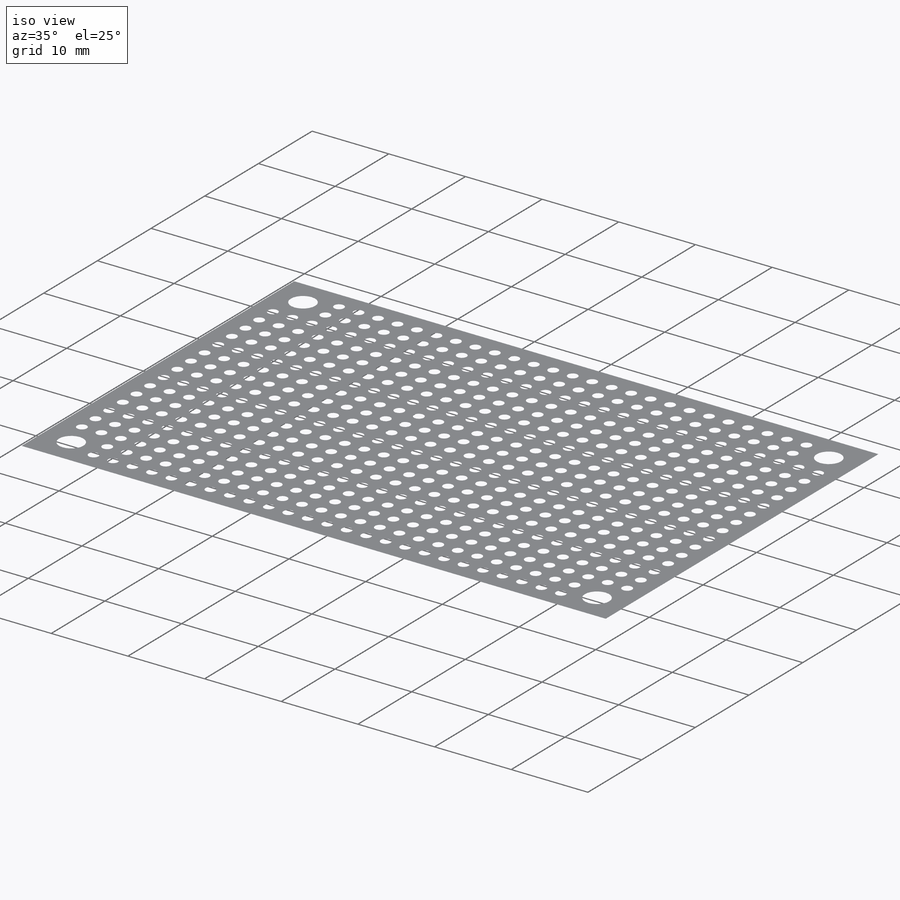
[diagram: iso view]
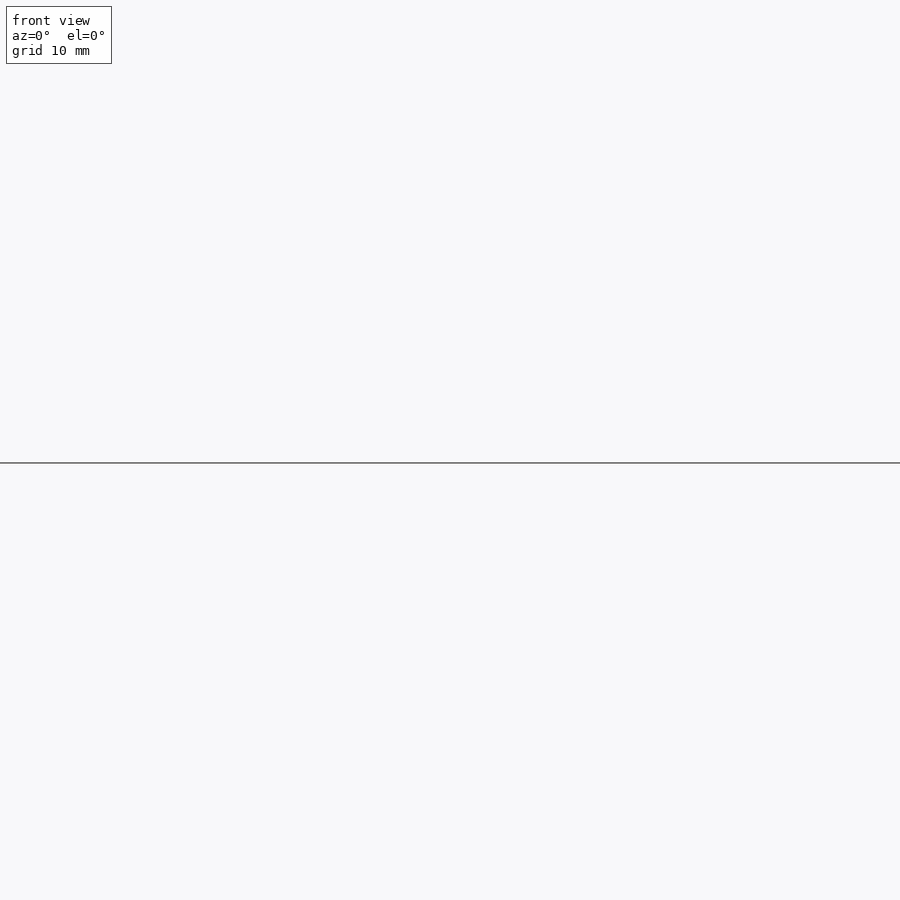
[diagram: front view]
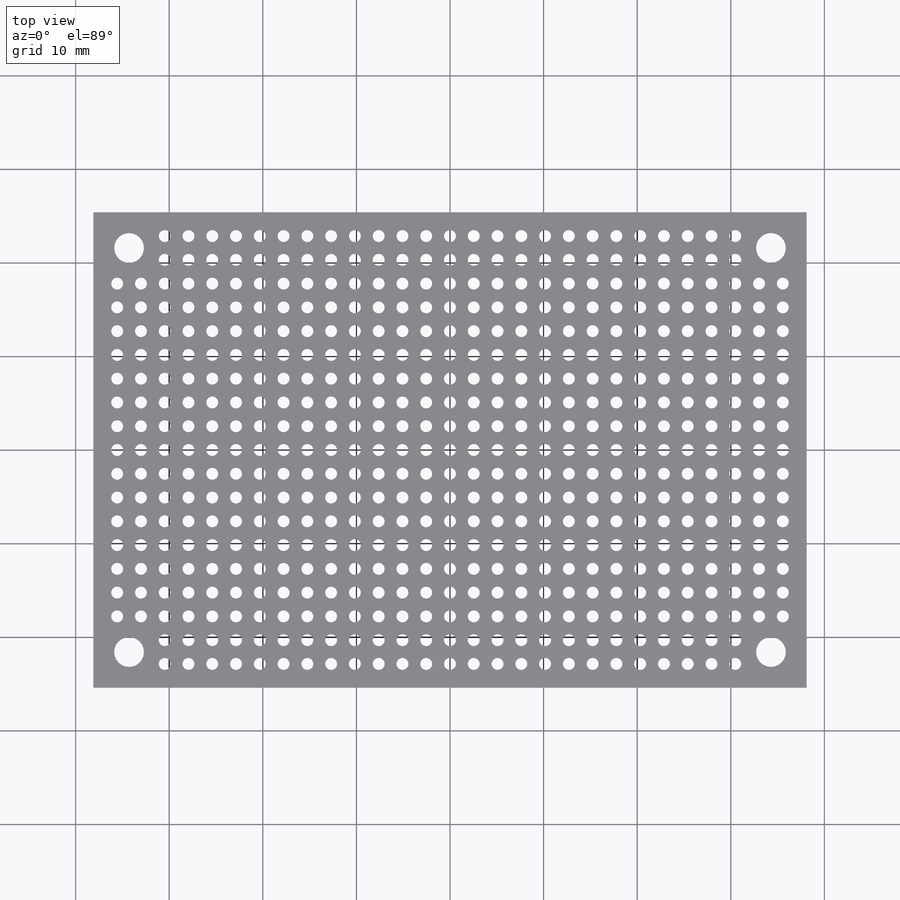
[diagram: top view]
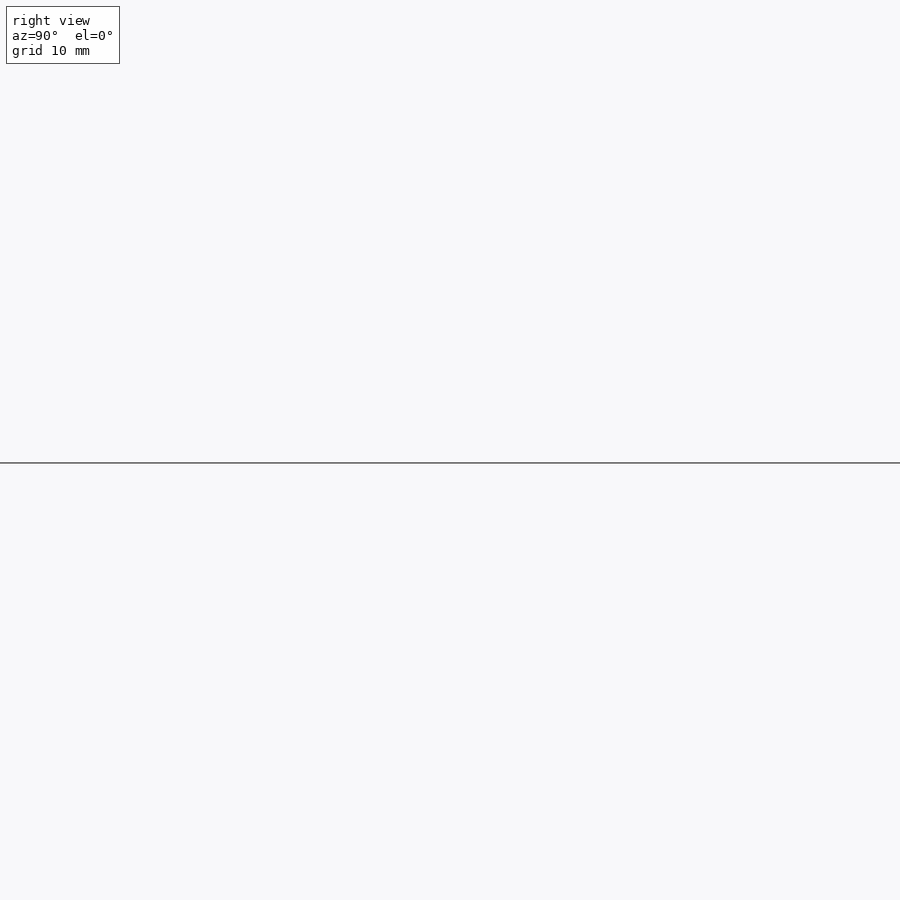
[diagram: right view]
SOLIDWORKS PART (.sldprt)
format: sldprt  version: not decoded by parser v0  size: 813,568 bytes
history: native  units: mm
features: sketch x3, cut_extrude x2, pattern_linear x2, material x1, extrude x1 (+12 scaffold rows collapsed)
feature tree (21):
  scaffold x12  (default folders/planes/origin — collapsed)
  material  "Silicon"
  sketch  "Sketch1"  dims[D3=3.175mm D1=76.2mm D2=50.8mm D4=68.58mm D5=43.18mm]
  extrude  "Boss-Extrude1"  Depth=1.524mm
  sketch  "Sketch2"  dims[D3=1.27mm D1=2.54mm D2=7.62mm]
  cut_extrude  "Cut-Extrude1"  [1 undecoded]
  pattern_linear  "LPattern1"  Count1=29 Count2=15 Spacing1=2.54mm Spacing2=2.54mm
  sketch  "Sketch3"  dims[D1=7.62mm D2=2.54mm]
  cut_extrude  "Cut-Extrude2"  [1 undecoded]
  pattern_linear  "LPattern2"  Count1=25 Count2=19 Spacing1=2.54mm Spacing2=2.54mm
decode coverage: 6 of 8 modeling features carry decoded parameters
note: 2 parameter values undecoded
note: suppression state not decoded; provenance and decode notes live in map.json
